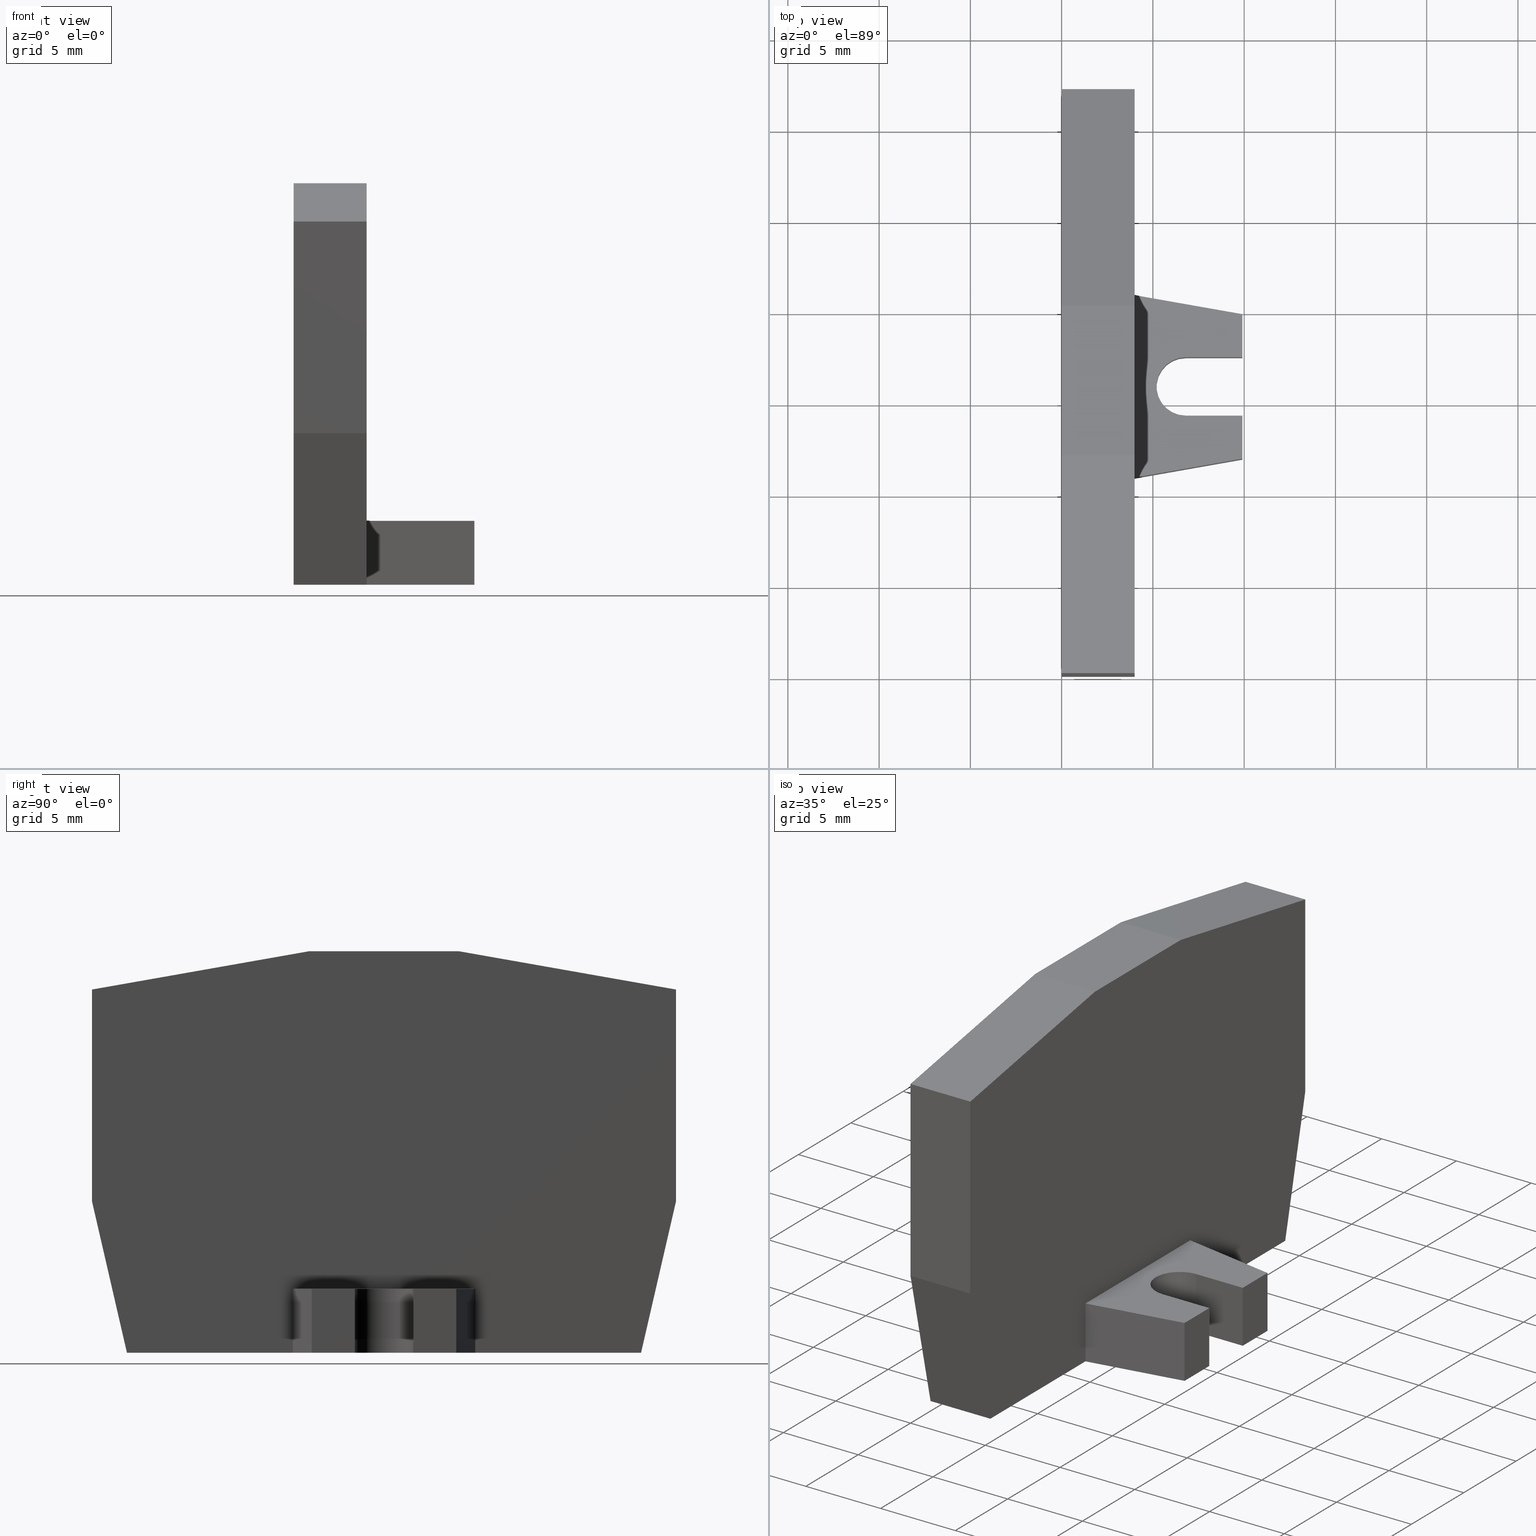
[diagram: canonical four-view strip — front | top / right | iso, engineering-drawing reading convention]
A machine part, canonical four-view strip (front | top / right | iso — engineering-drawing reading convention). The complete STEP part file that produces these views, byte-faithful:
ISO-10303-21;
HEADER;
FILE_DESCRIPTION(('Creo Elements/Direct Modeling STEP Export'),'2;1');
FILE_NAME(
'D:/temp/JobSpoolerServerData/JobServer Files/93475bc8-3e55-4a68-aea6-f9
3c253741bb/work/output/model.stp','2018-03-26T17:15:34',(''),(''),
'Creo Elements/Direct Modeling STEP processor for AP214 (Solid Model)',
'Creo Elements/Direct Modeling 18.1I  14-Aug-2016 (C) Parametric Technol
ogy GmbH','');
FILE_SCHEMA(('AUTOMOTIVE_DESIGN { 1 0 10303 214 1 1 1 1 }'));
ENDSEC;
DATA;
#10=CARTESIAN_POINT('',(-4.06644704301013,111.01779049095,
3.8277564886281));
#20=DIRECTION('',(-1.,2.54170139600954E-15,0.));
#30=DIRECTION('',(2.54170139600954E-15,1.,0.));
#40=AXIS2_PLACEMENT_3D('',#10,#20,#30);
#50=PLANE('',#40);
#60=CARTESIAN_POINT('',(-4.0664470430101,122.619499420518,
3.8277564886281));
#70=DIRECTION('',(0.,0.,-1.));
#80=VECTOR('',#70,1.);
#90=LINE('',#60,#80);
#100=CARTESIAN_POINT('',(-4.06644704301012,122.619499420518,
7.8277564886281));
#110=VERTEX_POINT('',#100);
#120=CARTESIAN_POINT('',(-4.06644704301012,122.619499420518,
3.8277564886281));
#130=VERTEX_POINT('',#120);
#140=EDGE_CURVE('',#110,#130,#90,.T.);
#150=ORIENTED_EDGE('',*,*,#140,.T.);
#160=CARTESIAN_POINT('',(-4.0664470430101,122.790993259522,
7.8277564886281));
#170=DIRECTION('',(-2.54170139600954E-15,-1.,0.));
#180=VECTOR('',#170,1.);
#190=LINE('',#160,#180);
#200=CARTESIAN_POINT('',(-4.06644704301013,111.01779049095,
7.8277564886281));
#210=VERTEX_POINT('',#200);
#220=EDGE_CURVE('',#110,#210,#190,.T.);
#230=ORIENTED_EDGE('',*,*,#220,.F.);
#240=CARTESIAN_POINT('',(-4.06644704301013,111.01779049095,
3.8277564886281));
#250=DIRECTION('',(0.,0.,1.));
#260=VECTOR('',#250,1.);
#270=LINE('',#240,#260);
#280=CARTESIAN_POINT('',(-4.06644704301013,111.01779049095,
3.8277564886281));
#290=VERTEX_POINT('',#280);
#300=EDGE_CURVE('',#290,#210,#270,.T.);
#310=ORIENTED_EDGE('',*,*,#300,.T.);
#320=CARTESIAN_POINT('',(-4.0664470430101,122.790993259522,
3.8277564886281));
#330=DIRECTION('',(2.54170139600954E-15,1.,6.31088724176809E-30));
#340=VECTOR('',#330,1.);
#350=LINE('',#320,#340);
#360=EDGE_CURVE('',#290,#130,#350,.T.);
#370=ORIENTED_EDGE('',*,*,#360,.F.);
#380=EDGE_LOOP('',(#370,#310,#230,#150));
#390=FACE_OUTER_BOUND('',#380,.T.);
#400=ADVANCED_FACE('',(#390),#50,.T.);
#410=COLOUR_RGB('',0.560784339904785,0.588235318660736,0.600000023841858
);
#420=FILL_AREA_STYLE_COLOUR('',#410);
#430=FILL_AREA_STYLE('',(#420));
#440=SURFACE_STYLE_FILL_AREA(#430);
#450=SURFACE_SIDE_STYLE('',(#440));
#460=SURFACE_STYLE_USAGE(.BOTH.,#450);
#470=PRESENTATION_STYLE_ASSIGNMENT((#460));
#480=CARTESIAN_POINT('',(-2.32917520478512,103.492839436606,
3.8277564886281));
#490=DIRECTION('',(-0.974370064785228,-0.224951054343896,-0.));
#500=DIRECTION('',(-0.224951054343896,0.974370064785228,0.));
#510=AXIS2_PLACEMENT_3D('',#480,#490,#500);
#520=PLANE('',#510);
#530=CARTESIAN_POINT('',(-6.78450506994527,122.790993259522,
3.8277564886281));
#540=DIRECTION('',(-0.224951054343896,0.974370064785228,0.));
#550=VECTOR('',#540,1.);
#560=LINE('',#530,#550);
#570=CARTESIAN_POINT('',(-2.15024105666769,102.71779049095,
3.8277564886281));
#580=VERTEX_POINT('',#570);
#590=EDGE_CURVE('',#580,#290,#560,.T.);
#600=ORIENTED_EDGE('',*,*,#590,.F.);
#610=ORIENTED_EDGE('',*,*,#300,.F.);
#620=CARTESIAN_POINT('',(-6.78450506994527,122.790993259522,
7.8277564886281));
#630=DIRECTION('',(0.224951054343896,-0.974370064785228,0.));
#640=VECTOR('',#630,1.);
#650=LINE('',#620,#640);
#660=CARTESIAN_POINT('',(-2.1502410566677,102.71779049095,
7.8277564886281));
#670=VERTEX_POINT('',#660);
#680=EDGE_CURVE('',#210,#670,#650,.T.);
#690=ORIENTED_EDGE('',*,*,#680,.F.);
#700=CARTESIAN_POINT('',(-2.1502410566677,102.71779049095,
3.8277564886281));
#710=DIRECTION('',(0.,0.,-1.));
#720=VECTOR('',#710,1.);
#730=LINE('',#700,#720);
#740=EDGE_CURVE('',#670,#580,#730,.T.);
#750=ORIENTED_EDGE('',*,*,#740,.F.);
#760=EDGE_LOOP('',(#750,#690,#610,#600));
#770=FACE_OUTER_BOUND('',#760,.T.);
#780=ADVANCED_FACE('',(#770),#520,.T.);
#790=COLOUR_RGB('',0.560784339904785,0.588235318660736,0.600000023841858
);
#800=FILL_AREA_STYLE_COLOUR('',#790);
#810=FILL_AREA_STYLE('',(#800));
#820=SURFACE_STYLE_FILL_AREA(#810);
#830=SURFACE_SIDE_STYLE('',(#820));
#840=SURFACE_STYLE_USAGE(.BOTH.,#830);
#850=PRESENTATION_STYLE_ASSIGNMENT((#840));
#860=CARTESIAN_POINT('',(13.5335529569918,102.71779049095,
12.7277564886281));
#870=DIRECTION('',(-1.,0.,0.));
#880=DIRECTION('',(0.,0.,1.));
#890=AXIS2_PLACEMENT_3D('',#860,#870,#880);
#900=PLANE('',#890);
#910=CARTESIAN_POINT('',(13.5335529569918,102.71779049095,
3.8277564886281));
#920=DIRECTION('',(0.,0.,-1.));
#930=VECTOR('',#920,1.);
#940=LINE('',#910,#930);
#950=CARTESIAN_POINT('',(13.5335529569918,102.71779049095,
13.7277564886282));
#960=VERTEX_POINT('',#950);
#970=CARTESIAN_POINT('',(13.5335529569918,102.71779049095,
10.6277564886281));
#980=VERTEX_POINT('',#970);
#990=EDGE_CURVE('',#960,#980,#940,.T.);
#1000=ORIENTED_EDGE('',*,*,#990,.F.);
#1010=CARTESIAN_POINT('',(13.5335529569918,102.71779049095,
10.6277564886281));
#1020=DIRECTION('',(0.,1.,0.));
#1030=VECTOR('',#1020,1.);
#1040=LINE('',#1010,#1030);
#1050=CARTESIAN_POINT('',(13.5335529569918,106.21779049095,
10.6277564886281));
#1060=VERTEX_POINT('',#1050);
#1070=EDGE_CURVE('',#980,#1060,#1040,.T.);
#1080=ORIENTED_EDGE('',*,*,#1070,.F.);
#1090=CARTESIAN_POINT('',(13.5335529569918,106.21779049095,
3.8277564886281));
#1100=DIRECTION('',(0.,0.,-1.));
#1110=VECTOR('',#1100,1.);
#1120=LINE('',#1090,#1110);
#1130=CARTESIAN_POINT('',(13.5335529569918,106.21779049095,
13.7277564886282));
#1140=VERTEX_POINT('',#1130);
#1150=EDGE_CURVE('',#1140,#1060,#1120,.T.);
#1160=ORIENTED_EDGE('',*,*,#1150,.T.);
#1170=CARTESIAN_POINT('',(13.5335529569918,122.790993259522,
13.7277564886282));
#1180=DIRECTION('',(0.,-1.,0.));
#1190=VECTOR('',#1180,1.);
#1200=LINE('',#1170,#1190);
#1210=EDGE_CURVE('',#1140,#960,#1200,.T.);
#1220=ORIENTED_EDGE('',*,*,#1210,.F.);
#1230=EDGE_LOOP('',(#1220,#1160,#1080,#1000));
#1240=FACE_OUTER_BOUND('',#1230,.T.);
#1250=ADVANCED_FACE('',(#1240),#900,.T.);
#1260=COLOUR_RGB('',0.560784339904785,0.588235318660736,
0.600000023841858);
#1270=FILL_AREA_STYLE_COLOUR('',#1260);
#1280=FILL_AREA_STYLE('',(#1270));
#1290=SURFACE_STYLE_FILL_AREA(#1280);
#1300=SURFACE_SIDE_STYLE('',(#1290));
#1310=SURFACE_STYLE_USAGE(.BOTH.,#1300);
#1320=PRESENTATION_STYLE_ASSIGNMENT((#1310));
#1330=CARTESIAN_POINT('',(27.9335529569937,122.19994960493,
3.8277564886281));
#1340=DIRECTION('',(1.,0.,0.));
#1350=DIRECTION('',(0.,-1.,0.));
#1360=AXIS2_PLACEMENT_3D('',#1330,#1340,#1350);
#1370=PLANE('',#1360);
#1380=CARTESIAN_POINT('',(27.9335529569937,122.790993259522,
3.8277564886281));
#1390=DIRECTION('',(0.,-1.,-6.3108872417681E-30));
#1400=VECTOR('',#1390,1.);
#1410=LINE('',#1380,#1400);
#1420=CARTESIAN_POINT('',(27.9335529569937,122.619499420518,
3.8277564886281));
#1430=VERTEX_POINT('',#1420);
#1440=CARTESIAN_POINT('',(27.9335529569937,111.01779049095,
3.8277564886281));
#1450=VERTEX_POINT('',#1440);
#1460=EDGE_CURVE('',#1430,#1450,#1410,.T.);
#1470=ORIENTED_EDGE('',*,*,#1460,.F.);
#1480=CARTESIAN_POINT('',(27.9335529569937,111.01779049095,
3.8277564886281));
#1490=DIRECTION('',(0.,0.,1.));
#1500=VECTOR('',#1490,1.);
#1510=LINE('',#1480,#1500);
#1520=CARTESIAN_POINT('',(27.9335529569937,111.01779049095,
7.8277564886281));
#1530=VERTEX_POINT('',#1520);
#1540=EDGE_CURVE('',#1450,#1530,#1510,.T.);
#1550=ORIENTED_EDGE('',*,*,#1540,.F.);
#1560=CARTESIAN_POINT('',(27.9335529569937,122.790993259522,
7.8277564886281));
#1570=DIRECTION('',(0.,1.,0.));
#1580=VECTOR('',#1570,1.);
#1590=LINE('',#1560,#1580);
#1600=CARTESIAN_POINT('',(27.9335529569937,122.619499420518,
7.8277564886281));
#1610=VERTEX_POINT('',#1600);
#1620=EDGE_CURVE('',#1530,#1610,#1590,.T.);
#1630=ORIENTED_EDGE('',*,*,#1620,.F.);
#1640=CARTESIAN_POINT('',(27.9335529569937,122.619499420518,
3.8277564886281));
#1650=DIRECTION('',(0.,0.,-1.));
#1660=VECTOR('',#1650,1.);
#1670=LINE('',#1640,#1660);
#1680=EDGE_CURVE('',#1610,#1430,#1670,.T.);
#1690=ORIENTED_EDGE('',*,*,#1680,.F.);
#1700=EDGE_LOOP('',(#1690,#1630,#1550,#1470));
#1710=FACE_OUTER_BOUND('',#1700,.T.);
#1720=ADVANCED_FACE('',(#1710),#1370,.T.);
#1730=COLOUR_RGB('',0.560784339904785,0.588235318660736,
0.600000023841858);
#1740=FILL_AREA_STYLE_COLOUR('',#1730);
#1750=FILL_AREA_STYLE('',(#1740));
#1760=SURFACE_STYLE_FILL_AREA(#1750);
#1770=SURFACE_SIDE_STYLE('',(#1760));
#1780=SURFACE_STYLE_USAGE(.BOTH.,#1770);
#1790=PRESENTATION_STYLE_ASSIGNMENT((#1780));
#1800=CARTESIAN_POINT('',(16.9335529569918,102.71779049095,
7.82775648862809));
#1810=DIRECTION('',(0.984807753012208,-0.,0.173648177666932));
#1820=DIRECTION('',(0.173648177666932,0.,-0.984807753012208));
#1830=AXIS2_PLACEMENT_3D('',#1800,#1810,#1820);
#1840=PLANE('',#1830);
#1850=CARTESIAN_POINT('',(15.8932237708119,122.790993259522,
13.7277564886281));
#1860=DIRECTION('',(0.,-1.,0.));
#1870=VECTOR('',#1860,1.);
#1880=LINE('',#1850,#1870);
#1890=CARTESIAN_POINT('',(15.8932237708119,106.21779049095,
13.7277564886281));
#1900=VERTEX_POINT('',#1890);
#1910=CARTESIAN_POINT('',(15.8932237708119,102.71779049095,
13.7277564886281));
#1920=VERTEX_POINT('',#1910);
#1930=EDGE_CURVE('',#1900,#1920,#1880,.T.);
#1940=ORIENTED_EDGE('',*,*,#1930,.T.);
#1950=CARTESIAN_POINT('',(17.6388608798257,106.21779049095,
3.8277564886281));
#1960=DIRECTION('',(0.173648177666932,0.,-0.984807753012208));
#1970=VECTOR('',#1960,1.);
#1980=LINE('',#1950,#1970);
#1990=CARTESIAN_POINT('',(16.9335529569918,106.21779049095,
7.8277564886281));
#2000=VERTEX_POINT('',#1990);
#2010=EDGE_CURVE('',#1900,#2000,#1980,.T.);
#2020=ORIENTED_EDGE('',*,*,#2010,.F.);
#2030=CARTESIAN_POINT('',(16.9335529569918,103.81779049095,
7.82775648862809));
#2040=DIRECTION('',(0.,1.,0.));
#2050=VECTOR('',#2040,1.);
#2060=LINE('',#2030,#2050);
#2070=CARTESIAN_POINT('',(16.9335529569918,102.71779049095,
7.8277564886281));
#2080=VERTEX_POINT('',#2070);
#2090=EDGE_CURVE('',#2080,#2000,#2060,.T.);
#2100=ORIENTED_EDGE('',*,*,#2090,.T.);
#2110=CARTESIAN_POINT('',(17.6388608798257,102.71779049095,
3.8277564886281));
#2120=DIRECTION('',(0.173648177666932,0.,-0.984807753012208));
#2130=VECTOR('',#2120,1.);
#2140=LINE('',#2110,#2130);
#2150=EDGE_CURVE('',#1920,#2080,#2140,.T.);
#2160=ORIENTED_EDGE('',*,*,#2150,.T.);
#2170=EDGE_LOOP('',(#2160,#2100,#2020,#1940));
#2180=FACE_OUTER_BOUND('',#2170,.T.);
#2190=ADVANCED_FACE('',(#2180),#1840,.T.);
#2200=COLOUR_RGB('',0.560784339904785,0.588235318660736,
0.600000023841858);
#2210=FILL_AREA_STYLE_COLOUR('',#2200);
#2220=FILL_AREA_STYLE('',(#2210));
#2230=SURFACE_STYLE_FILL_AREA(#2220);
#2240=SURFACE_SIDE_STYLE('',(#2230));
#2250=SURFACE_STYLE_USAGE(.BOTH.,#2240);
#2260=PRESENTATION_STYLE_ASSIGNMENT((#2250));
#2270=CARTESIAN_POINT('',(7.82817402133679,102.71779049095,
12.901404666295));
#2280=DIRECTION('',(-0.984807753012208,0.,0.173648177666931));
#2290=DIRECTION('',(0.173648177666931,0.,0.984807753012208));
#2300=AXIS2_PLACEMENT_3D('',#2270,#2280,#2290);
#2310=PLANE('',#2300);
#2320=CARTESIAN_POINT('',(6.22824503415792,102.71779049095,
3.8277564886281));
#2330=DIRECTION('',(0.173648177666931,0.,0.984807753012208));
#2340=VECTOR('',#2330,1.);
#2350=LINE('',#2320,#2340);
#2360=CARTESIAN_POINT('',(6.93355295699178,102.71779049095,
7.8277564886281));
#2370=VERTEX_POINT('',#2360);
#2380=CARTESIAN_POINT('',(7.97388214317185,102.71779049095,
13.7277564886288));
#2390=VERTEX_POINT('',#2380);
#2400=EDGE_CURVE('',#2370,#2390,#2350,.T.);
#2410=ORIENTED_EDGE('',*,*,#2400,.T.);
#2420=CARTESIAN_POINT('',(6.93355295699178,103.81779049095,
7.82775648862809));
#2430=DIRECTION('',(0.,1.,0.));
#2440=VECTOR('',#2430,1.);
#2450=LINE('',#2420,#2440);
#2460=CARTESIAN_POINT('',(6.93355295699178,106.21779049095,
7.8277564886281));
#2470=VERTEX_POINT('',#2460);
#2480=EDGE_CURVE('',#2370,#2470,#2450,.T.);
#2490=ORIENTED_EDGE('',*,*,#2480,.F.);
#2500=CARTESIAN_POINT('',(6.22824503415792,106.21779049095,
3.8277564886281));
#2510=DIRECTION('',(0.173648177666931,0.,0.984807753012208));
#2520=VECTOR('',#2510,1.);
#2530=LINE('',#2500,#2520);
#2540=CARTESIAN_POINT('',(7.97388214317185,106.21779049095,
13.7277564886288));
#2550=VERTEX_POINT('',#2540);
#2560=EDGE_CURVE('',#2470,#2550,#2530,.T.);
#2570=ORIENTED_EDGE('',*,*,#2560,.F.);
#2580=CARTESIAN_POINT('',(7.97388214317185,122.790993259522,
13.7277564886288));
#2590=DIRECTION('',(0.,-1.,0.));
#2600=VECTOR('',#2590,1.);
#2610=LINE('',#2580,#2600);
#2620=EDGE_CURVE('',#2550,#2390,#2610,.T.);
#2630=ORIENTED_EDGE('',*,*,#2620,.F.);
#2640=EDGE_LOOP('',(#2630,#2570,#2490,#2410));
#2650=FACE_OUTER_BOUND('',#2640,.T.);
#2660=ADVANCED_FACE('',(#2650),#2310,.T.);
#2670=COLOUR_RGB('',0.560784339904785,0.588235318660736,
0.600000023841858);
#2680=FILL_AREA_STYLE_COLOUR('',#2670);
#2690=FILL_AREA_STYLE('',(#2680));
#2700=SURFACE_STYLE_FILL_AREA(#2690);
#2710=SURFACE_SIDE_STYLE('',(#2700));
#2720=SURFACE_STYLE_USAGE(.BOTH.,#2710);
#2730=PRESENTATION_STYLE_ASSIGNMENT((#2720));
#2740=CARTESIAN_POINT('',(20.1344304914371,102.71779049095,
5.43891971521969));
#2750=DIRECTION('',(0.,-1.,0.));
#2760=DIRECTION('',(1.,0.,0.));
#2770=AXIS2_PLACEMENT_3D('',#2740,#2750,#2760);
#2780=PLANE('',#2770);
#2790=ORIENTED_EDGE('',*,*,#740,.T.);
#2800=CARTESIAN_POINT('',(20.073056853767,102.71779049095,
7.8277564886281));
#2810=DIRECTION('',(1.,0.,0.));
#2820=VECTOR('',#2810,1.);
#2830=LINE('',#2800,#2820);
#2840=EDGE_CURVE('',#670,#2370,#2830,.T.);
#2850=ORIENTED_EDGE('',*,*,#2840,.F.);
#2860=ORIENTED_EDGE('',*,*,#2400,.F.);
#2870=CARTESIAN_POINT('',(20.073056853767,102.71779049095,
13.7277564886184));
#2880=DIRECTION('',(1.,0.,-8.63517120161028E-13));
#2890=VECTOR('',#2880,1.);
#2900=LINE('',#2870,#2890);
#2910=CARTESIAN_POINT('',(10.3335529569918,102.71779049095,
13.7277564886268));
#2920=VERTEX_POINT('',#2910);
#2930=EDGE_CURVE('',#2390,#2920,#2900,.T.);
#2940=ORIENTED_EDGE('',*,*,#2930,.F.);
#2950=CARTESIAN_POINT('',(10.3335529569918,102.71779049095,
3.8277564886281));
#2960=DIRECTION('',(0.,0.,-1.));
#2970=VECTOR('',#2960,1.);
#2980=LINE('',#2950,#2970);
#2990=CARTESIAN_POINT('',(10.3335529569918,102.71779049095,
10.6277564886281));
#3000=VERTEX_POINT('',#2990);
#3010=EDGE_CURVE('',#2920,#3000,#2980,.T.);
#3020=ORIENTED_EDGE('',*,*,#3010,.F.);
#3030=CARTESIAN_POINT('',(11.9335529569918,102.71779049095,
10.6277564886281));
#3040=DIRECTION('',(0.,-1.,0.));
#3050=DIRECTION('',(-1.,0.,0.));
#3060=AXIS2_PLACEMENT_3D('',#3030,#3040,#3050);
#3070=CIRCLE('',#3060,1.59999999999999);
#3080=EDGE_CURVE('',#3000,#980,#3070,.T.);
#3090=ORIENTED_EDGE('',*,*,#3080,.F.);
#3100=ORIENTED_EDGE('',*,*,#990,.T.);
#3110=CARTESIAN_POINT('',(20.073056853767,102.71779049095,
13.7277564886279));
#3120=DIRECTION('',(1.,0.,-3.5527136788005E-14));
#3130=VECTOR('',#3120,1.);
#3140=LINE('',#3110,#3130);
#3150=EDGE_CURVE('',#960,#1920,#3140,.T.);
#3160=ORIENTED_EDGE('',*,*,#3150,.F.);
#3170=ORIENTED_EDGE('',*,*,#2150,.F.);
#3180=CARTESIAN_POINT('',(20.073056853767,102.71779049095,
7.8277564886281));
#3190=DIRECTION('',(1.,0.,0.));
#3200=VECTOR('',#3190,1.);
#3210=LINE('',#3180,#3200);
#3220=CARTESIAN_POINT('',(26.0173469706513,102.71779049095,
7.8277564886281));
#3230=VERTEX_POINT('',#3220);
#3240=EDGE_CURVE('',#2080,#3230,#3210,.T.);
#3250=ORIENTED_EDGE('',*,*,#3240,.F.);
#3260=CARTESIAN_POINT('',(26.0173469706513,102.71779049095,
3.8277564886281));
#3270=DIRECTION('',(0.,0.,-1.));
#3280=VECTOR('',#3270,1.);
#3290=LINE('',#3260,#3280);
#3300=CARTESIAN_POINT('',(26.0173469706513,102.71779049095,
3.8277564886281));
#3310=VERTEX_POINT('',#3300);
#3320=EDGE_CURVE('',#3230,#3310,#3290,.T.);
#3330=ORIENTED_EDGE('',*,*,#3320,.F.);
#3340=CARTESIAN_POINT('',(20.073056853767,102.71779049095,
3.8277564886281));
#3350=DIRECTION('',(-1.,0.,0.));
#3360=VECTOR('',#3350,1.);
#3370=LINE('',#3340,#3360);
#3380=EDGE_CURVE('',#3310,#580,#3370,.T.);
#3390=ORIENTED_EDGE('',*,*,#3380,.F.);
#3400=EDGE_LOOP('',(#3390,#3330,#3250,#3170,#3160,#3100,#3090,#3020,
#2940,#2860,#2850,#2790));
#3410=FACE_OUTER_BOUND('',#3400,.T.);
#3420=ADVANCED_FACE('',(#3410),#2780,.T.);
#3430=COLOUR_RGB('',0.560784339904785,0.588235318660736,
0.600000023841858);
#3440=FILL_AREA_STYLE_COLOUR('',#3430);
#3450=FILL_AREA_STYLE('',(#3440));
#3460=SURFACE_STYLE_FILL_AREA(#3450);
#3470=SURFACE_SIDE_STYLE('',(#3460));
#3480=SURFACE_STYLE_USAGE(.BOTH.,#3470);
#3490=PRESENTATION_STYLE_ASSIGNMENT((#3480));
#3500=CARTESIAN_POINT('',(27.9335529569937,111.01779049095,
3.8277564886281));
#3510=DIRECTION('',(0.97437006478523,-0.224951054343888,0.));
#3520=DIRECTION('',(-0.224951054343888,-0.97437006478523,0.));
#3530=AXIS2_PLACEMENT_3D('',#3500,#3510,#3520);
#3540=PLANE('',#3530);
#3550=ORIENTED_EDGE('',*,*,#3320,.T.);
#3560=CARTESIAN_POINT('',(30.6516109839287,122.790993259522,
7.8277564886281));
#3570=DIRECTION('',(0.224951054343888,0.97437006478523,0.));
#3580=VECTOR('',#3570,1.);
#3590=LINE('',#3560,#3580);
#3600=EDGE_CURVE('',#3230,#1530,#3590,.T.);
#3610=ORIENTED_EDGE('',*,*,#3600,.F.);
#3620=ORIENTED_EDGE('',*,*,#1540,.T.);
#3630=CARTESIAN_POINT('',(30.6516109839287,122.790993259522,
3.8277564886281));
#3640=DIRECTION('',(-0.224951054343888,-0.97437006478523,0.));
#3650=VECTOR('',#3640,1.);
#3660=LINE('',#3630,#3650);
#3670=EDGE_CURVE('',#1450,#3310,#3660,.T.);
#3680=ORIENTED_EDGE('',*,*,#3670,.F.);
#3690=EDGE_LOOP('',(#3680,#3620,#3610,#3550));
#3700=FACE_OUTER_BOUND('',#3690,.T.);
#3710=ADVANCED_FACE('',(#3700),#3540,.T.);
#3720=COLOUR_RGB('',0.560784339904785,0.588235318660736,
0.600000023841858);
#3730=FILL_AREA_STYLE_COLOUR('',#3720);
#3740=FILL_AREA_STYLE('',(#3730));
#3750=SURFACE_STYLE_FILL_AREA(#3740);
#3760=SURFACE_SIDE_STYLE('',(#3750));
#3770=SURFACE_STYLE_USAGE(.BOTH.,#3760);
#3780=PRESENTATION_STYLE_ASSIGNMENT((#3770));
#3790=CARTESIAN_POINT('',(11.9335529569918,102.71779049095,
10.6277564886281));
#3800=DIRECTION('',(0.,-1.,0.));
#3810=DIRECTION('',(-1.,0.,0.));
#3820=AXIS2_PLACEMENT_3D('',#3790,#3800,#3810);
#3830=CYLINDRICAL_SURFACE('',#3820,1.59999999999999);
#3840=CARTESIAN_POINT('',(10.3335529569918,102.71779049095,
10.6277564886281));
#3850=DIRECTION('',(0.,1.,0.));
#3860=VECTOR('',#3850,1.);
#3870=LINE('',#3840,#3860);
#3880=CARTESIAN_POINT('',(10.3335529569918,106.21779049095,
10.6277564886281));
#3890=VERTEX_POINT('',#3880);
#3900=EDGE_CURVE('',#3000,#3890,#3870,.T.);
#3910=ORIENTED_EDGE('',*,*,#3900,.F.);
#3920=CARTESIAN_POINT('',(11.9335529569918,106.21779049095,
10.6277564886281));
#3930=DIRECTION('',(0.,-1.,0.));
#3940=DIRECTION('',(-1.,0.,0.));
#3950=AXIS2_PLACEMENT_3D('',#3920,#3930,#3940);
#3960=CIRCLE('',#3950,1.59999999999999);
#3970=EDGE_CURVE('',#3890,#1060,#3960,.T.);
#3980=ORIENTED_EDGE('',*,*,#3970,.F.);
#3990=ORIENTED_EDGE('',*,*,#1070,.T.);
#4000=ORIENTED_EDGE('',*,*,#3080,.T.);
#4010=EDGE_LOOP('',(#4000,#3990,#3980,#3910));
#4020=FACE_OUTER_BOUND('',#4010,.T.);
#4030=ADVANCED_FACE('',(#4020),#3830,.F.);
#4040=COLOUR_RGB('',0.560784339904785,0.588235318660736,
0.600000023841858);
#4050=FILL_AREA_STYLE_COLOUR('',#4040);
#4060=FILL_AREA_STYLE('',(#4050));
#4070=SURFACE_STYLE_FILL_AREA(#4060);
#4080=SURFACE_SIDE_STYLE('',(#4070));
#4090=SURFACE_STYLE_USAGE(.BOTH.,#4080);
#4100=PRESENTATION_STYLE_ASSIGNMENT((#4090));
#4110=CARTESIAN_POINT('',(10.3335529569918,102.71779049095,
10.6277564886281));
#4120=DIRECTION('',(1.,-0.,0.));
#4130=DIRECTION('',(0.,0.,-1.));
#4140=AXIS2_PLACEMENT_3D('',#4110,#4120,#4130);
#4150=PLANE('',#4140);
#4160=CARTESIAN_POINT('',(10.3335529569918,122.790993259522,
13.7277564886268));
#4170=DIRECTION('',(0.,-1.,0.));
#4180=VECTOR('',#4170,1.);
#4190=LINE('',#4160,#4180);
#4200=CARTESIAN_POINT('',(10.3335529569918,106.21779049095,
13.7277564886268));
#4210=VERTEX_POINT('',#4200);
#4220=EDGE_CURVE('',#4210,#2920,#4190,.T.);
#4230=ORIENTED_EDGE('',*,*,#4220,.T.);
#4240=CARTESIAN_POINT('',(10.3335529569918,106.21779049095,
3.8277564886281));
#4250=DIRECTION('',(0.,0.,-1.));
#4260=VECTOR('',#4250,1.);
#4270=LINE('',#4240,#4260);
#4280=EDGE_CURVE('',#4210,#3890,#4270,.T.);
#4290=ORIENTED_EDGE('',*,*,#4280,.F.);
#4300=ORIENTED_EDGE('',*,*,#3900,.T.);
#4310=ORIENTED_EDGE('',*,*,#3010,.T.);
#4320=EDGE_LOOP('',(#4310,#4300,#4290,#4230));
#4330=FACE_OUTER_BOUND('',#4320,.T.);
#4340=ADVANCED_FACE('',(#4330),#4150,.T.);
#4350=COLOUR_RGB('',0.560784339904785,0.588235318660736,
0.600000023841858);
#4360=FILL_AREA_STYLE_COLOUR('',#4350);
#4370=FILL_AREA_STYLE('',(#4360));
#4380=SURFACE_STYLE_FILL_AREA(#4370);
#4390=SURFACE_SIDE_STYLE('',(#4380));
#4400=SURFACE_STYLE_USAGE(.BOTH.,#4390);
#4410=PRESENTATION_STYLE_ASSIGNMENT((#4400));
#4420=CARTESIAN_POINT('',(8.83355295699178,103.81779049095,
13.7277564886281));
#4430=DIRECTION('',(8.63517120161028E-13,-0.,1.));
#4440=DIRECTION('',(1.,0.,-8.63517120161028E-13));
#4450=AXIS2_PLACEMENT_3D('',#4420,#4430,#4440);
#4460=PLANE('',#4450);
#4470=ORIENTED_EDGE('',*,*,#2930,.T.);
#4480=ORIENTED_EDGE('',*,*,#2620,.T.);
#4490=CARTESIAN_POINT('',(20.073056853767,106.21779049095,
13.7277564886184));
#4500=DIRECTION('',(-1.,0.,8.63517120161028E-13));
#4510=VECTOR('',#4500,1.);
#4520=LINE('',#4490,#4510);
#4530=EDGE_CURVE('',#4210,#2550,#4520,.T.);
#4540=ORIENTED_EDGE('',*,*,#4530,.T.);
#4550=ORIENTED_EDGE('',*,*,#4220,.F.);
#4560=EDGE_LOOP('',(#4550,#4540,#4480,#4470));
#4570=FACE_OUTER_BOUND('',#4560,.T.);
#4580=ADVANCED_FACE('',(#4570),#4460,.T.);
#4590=COLOUR_RGB('',0.560784339904785,0.588235318660736,
0.600000023841858);
#4600=FILL_AREA_STYLE_COLOUR('',#4590);
#4610=FILL_AREA_STYLE('',(#4600));
#4620=SURFACE_STYLE_FILL_AREA(#4610);
#4630=SURFACE_SIDE_STYLE('',(#4620));
#4640=SURFACE_STYLE_USAGE(.BOTH.,#4630);
#4650=PRESENTATION_STYLE_ASSIGNMENT((#4640));
#4660=CARTESIAN_POINT('',(20.1344304914371,106.21779049095,
5.43891971521969));
#4670=DIRECTION('',(0.,-1.,0.));
#4680=DIRECTION('',(1.,0.,0.));
#4690=AXIS2_PLACEMENT_3D('',#4660,#4670,#4680);
#4700=PLANE('',#4690);
#4710=ORIENTED_EDGE('',*,*,#4530,.F.);
#4720=ORIENTED_EDGE('',*,*,#2560,.T.);
#4730=CARTESIAN_POINT('',(20.073056853767,106.21779049095,
7.8277564886281));
#4740=DIRECTION('',(-1.,0.,0.));
#4750=VECTOR('',#4740,1.);
#4760=LINE('',#4730,#4750);
#4770=EDGE_CURVE('',#2000,#2470,#4760,.T.);
#4780=ORIENTED_EDGE('',*,*,#4770,.T.);
#4790=ORIENTED_EDGE('',*,*,#2010,.T.);
#4800=CARTESIAN_POINT('',(20.073056853767,106.21779049095,
13.7277564886279));
#4810=DIRECTION('',(1.,0.,-3.5527136788005E-14));
#4820=VECTOR('',#4810,1.);
#4830=LINE('',#4800,#4820);
#4840=EDGE_CURVE('',#1140,#1900,#4830,.T.);
#4850=ORIENTED_EDGE('',*,*,#4840,.T.);
#4860=ORIENTED_EDGE('',*,*,#1150,.F.);
#4870=ORIENTED_EDGE('',*,*,#3970,.T.);
#4880=ORIENTED_EDGE('',*,*,#4280,.T.);
#4890=EDGE_LOOP('',(#4880,#4870,#4860,#4850,#4790,#4780,#4720,#4710));
#4900=FACE_OUTER_BOUND('',#4890,.T.);
#4910=ADVANCED_FACE('',(#4900),#4700,.F.);
#4920=COLOUR_RGB('',0.560784339904785,0.588235318660736,
0.600000023841858);
#4930=FILL_AREA_STYLE_COLOUR('',#4920);
#4940=FILL_AREA_STYLE('',(#4930));
#4950=SURFACE_STYLE_FILL_AREA(#4940);
#4960=SURFACE_SIDE_STYLE('',(#4950));
#4970=SURFACE_STYLE_USAGE(.BOTH.,#4960);
#4980=PRESENTATION_STYLE_ASSIGNMENT((#4970));
#4990=CARTESIAN_POINT('',(15.0541241396346,103.81779049095,
13.7277564886281));
#5000=DIRECTION('',(3.5527136788005E-14,-0.,1.));
#5010=DIRECTION('',(1.,0.,-3.5527136788005E-14));
#5020=AXIS2_PLACEMENT_3D('',#4990,#5000,#5010);
#5030=PLANE('',#5020);
#5040=ORIENTED_EDGE('',*,*,#3150,.T.);
#5050=ORIENTED_EDGE('',*,*,#1210,.T.);
#5060=ORIENTED_EDGE('',*,*,#4840,.F.);
#5070=ORIENTED_EDGE('',*,*,#1930,.F.);
#5080=EDGE_LOOP('',(#5070,#5060,#5050,#5040));
#5090=FACE_OUTER_BOUND('',#5080,.T.);
#5100=ADVANCED_FACE('',(#5090),#5030,.T.);
#5110=COLOUR_RGB('',0.560784339904785,0.588235318660736,
0.600000023841858);
#5120=FILL_AREA_STYLE_COLOUR('',#5110);
#5130=FILL_AREA_STYLE('',(#5120));
#5140=SURFACE_STYLE_FILL_AREA(#5130);
#5150=SURFACE_SIDE_STYLE('',(#5140));
#5160=SURFACE_STYLE_USAGE(.BOTH.,#5150);
#5170=PRESENTATION_STYLE_ASSIGNMENT((#5160));
#5180=CARTESIAN_POINT('',(2.848841,106.75753,3.8277564886281));
#5190=DIRECTION('',(0.,6.3108872417681E-30,-1.));
#5200=DIRECTION('',(0.,-1.,-6.3108872417681E-30));
#5210=AXIS2_PLACEMENT_3D('',#5180,#5190,#5200);
#5220=PLANE('',#5210);
#5230=ORIENTED_EDGE('',*,*,#3380,.T.);
#5240=ORIENTED_EDGE('',*,*,#3670,.T.);
#5250=ORIENTED_EDGE('',*,*,#1460,.T.);
#5260=CARTESIAN_POINT('',(20.073056853767,124.005516965271,
3.8277564886281));
#5270=DIRECTION('',(0.984807753012205,-0.173648177666947,0.));
#5280=VECTOR('',#5270,1.);
#5290=LINE('',#5260,#5280);
#5300=CARTESIAN_POINT('',(16.0335529569916,124.71779049095,
3.8277564886281));
#5310=VERTEX_POINT('',#5300);
#5320=EDGE_CURVE('',#5310,#1430,#5290,.T.);
#5330=ORIENTED_EDGE('',*,*,#5320,.T.);
#5340=CARTESIAN_POINT('',(20.073056853767,124.71779049095,
3.8277564886281));
#5350=DIRECTION('',(1.,0.,0.));
#5360=VECTOR('',#5350,1.);
#5370=LINE('',#5340,#5360);
#5380=CARTESIAN_POINT('',(7.83355295699195,124.71779049095,
3.8277564886281));
#5390=VERTEX_POINT('',#5380);
#5400=EDGE_CURVE('',#5390,#5310,#5370,.T.);
#5410=ORIENTED_EDGE('',*,*,#5400,.T.);
#5420=CARTESIAN_POINT('',(20.073056853767,126.875945258438,
3.8277564886281));
#5430=DIRECTION('',(0.984807753012205,0.173648177666947,0.));
#5440=VECTOR('',#5430,1.);
#5450=LINE('',#5420,#5440);
#5460=EDGE_CURVE('',#130,#5390,#5450,.T.);
#5470=ORIENTED_EDGE('',*,*,#5460,.T.);
#5480=ORIENTED_EDGE('',*,*,#360,.T.);
#5490=ORIENTED_EDGE('',*,*,#590,.T.);
#5500=EDGE_LOOP('',(#5490,#5480,#5470,#5410,#5330,#5250,#5240,#5230));
#5510=FACE_OUTER_BOUND('',#5500,.T.);
#5520=ADVANCED_FACE('',(#5510),#5220,.T.);
#5530=COLOUR_RGB('',0.560784339904785,0.588235318660736,
0.600000023841858);
#5540=FILL_AREA_STYLE_COLOUR('',#5530);
#5550=FILL_AREA_STYLE('',(#5540));
#5560=SURFACE_STYLE_FILL_AREA(#5550);
#5570=SURFACE_SIDE_STYLE('',(#5560));
#5580=SURFACE_STYLE_USAGE(.BOTH.,#5570);
#5590=PRESENTATION_STYLE_ASSIGNMENT((#5580));
#5600=CARTESIAN_POINT('',(2.848841,111.340026,7.8277564886281));
#5610=DIRECTION('',(0.,0.,1.));
#5620=DIRECTION('',(1.,0.,0.));
#5630=AXIS2_PLACEMENT_3D('',#5600,#5610,#5620);
#5640=PLANE('',#5630);
#5650=ORIENTED_EDGE('',*,*,#680,.T.);
#5660=ORIENTED_EDGE('',*,*,#220,.T.);
#5670=CARTESIAN_POINT('',(20.073056853767,126.875945258438,
7.8277564886281));
#5680=DIRECTION('',(-0.984807753012205,-0.173648177666947,0.));
#5690=VECTOR('',#5680,1.);
#5700=LINE('',#5670,#5690);
#5710=CARTESIAN_POINT('',(7.83355295699197,124.71779049095,
7.8277564886281));
#5720=VERTEX_POINT('',#5710);
#5730=EDGE_CURVE('',#5720,#110,#5700,.T.);
#5740=ORIENTED_EDGE('',*,*,#5730,.T.);
#5750=CARTESIAN_POINT('',(20.073056853767,124.71779049095,
7.8277564886281));
#5760=DIRECTION('',(-1.,0.,0.));
#5770=VECTOR('',#5760,1.);
#5780=LINE('',#5750,#5770);
#5790=CARTESIAN_POINT('',(16.0335529569916,124.71779049095,
7.8277564886281));
#5800=VERTEX_POINT('',#5790);
#5810=EDGE_CURVE('',#5800,#5720,#5780,.T.);
#5820=ORIENTED_EDGE('',*,*,#5810,.T.);
#5830=CARTESIAN_POINT('',(20.073056853767,124.005516965271,
7.8277564886281));
#5840=DIRECTION('',(-0.984807753012205,0.173648177666947,0.));
#5850=VECTOR('',#5840,1.);
#5860=LINE('',#5830,#5850);
#5870=EDGE_CURVE('',#1610,#5800,#5860,.T.);
#5880=ORIENTED_EDGE('',*,*,#5870,.T.);
#5890=ORIENTED_EDGE('',*,*,#1620,.T.);
#5900=ORIENTED_EDGE('',*,*,#3600,.T.);
#5910=ORIENTED_EDGE('',*,*,#3240,.T.);
#5920=ORIENTED_EDGE('',*,*,#2090,.F.);
#5930=ORIENTED_EDGE('',*,*,#4770,.F.);
#5940=ORIENTED_EDGE('',*,*,#2480,.T.);
#5950=ORIENTED_EDGE('',*,*,#2840,.T.);
#5960=EDGE_LOOP('',(#5950,#5940,#5930,#5920,#5910,#5900,#5890,#5880,
#5820,#5740,#5660,#5650));
#5970=FACE_OUTER_BOUND('',#5960,.T.);
#5980=ADVANCED_FACE('',(#5970),#5640,.T.);
#5990=COLOUR_RGB('',0.560784339904785,0.588235318660736,
0.600000023841858);
#6000=FILL_AREA_STYLE_COLOUR('',#5990);
#6010=FILL_AREA_STYLE('',(#6000));
#6020=SURFACE_STYLE_FILL_AREA(#6010);
#6030=SURFACE_SIDE_STYLE('',(#6020));
#6040=SURFACE_STYLE_USAGE(.BOTH.,#6030);
#6050=PRESENTATION_STYLE_ASSIGNMENT((#6040));
#6060=CARTESIAN_POINT('',(7.83355295699198,124.71779049095,
3.8277564886281));
#6070=DIRECTION('',(-0.,1.,0.));
#6080=DIRECTION('',(1.,0.,0.));
#6090=AXIS2_PLACEMENT_3D('',#6060,#6070,#6080);
#6100=PLANE('',#6090);
#6110=ORIENTED_EDGE('',*,*,#5400,.F.);
#6120=CARTESIAN_POINT('',(16.0335529569916,124.71779049095,
3.8277564886281));
#6130=DIRECTION('',(0.,0.,1.));
#6140=VECTOR('',#6130,1.);
#6150=LINE('',#6120,#6140);
#6160=EDGE_CURVE('',#5310,#5800,#6150,.T.);
#6170=ORIENTED_EDGE('',*,*,#6160,.F.);
#6180=ORIENTED_EDGE('',*,*,#5810,.F.);
#6190=CARTESIAN_POINT('',(7.83355295699198,124.71779049095,
3.8277564886281));
#6200=DIRECTION('',(0.,0.,-1.));
#6210=VECTOR('',#6200,1.);
#6220=LINE('',#6190,#6210);
#6230=EDGE_CURVE('',#5720,#5390,#6220,.T.);
#6240=ORIENTED_EDGE('',*,*,#6230,.F.);
#6250=EDGE_LOOP('',(#6240,#6180,#6170,#6110));
#6260=FACE_OUTER_BOUND('',#6250,.T.);
#6270=ADVANCED_FACE('',(#6260),#6100,.T.);
#6280=COLOUR_RGB('',0.560784339904785,0.588235318660736,
0.600000023841858);
#6290=FILL_AREA_STYLE_COLOUR('',#6280);
#6300=FILL_AREA_STYLE('',(#6290));
#6310=SURFACE_STYLE_FILL_AREA(#6300);
#6320=SURFACE_SIDE_STYLE('',(#6310));
#6330=SURFACE_STYLE_USAGE(.BOTH.,#6320);
#6340=PRESENTATION_STYLE_ASSIGNMENT((#6330));
#6350=CARTESIAN_POINT('',(16.0335529569916,124.71779049095,
3.8277564886281));
#6360=DIRECTION('',(0.173648177666947,0.984807753012205,0.));
#6370=DIRECTION('',(0.984807753012205,-0.173648177666947,0.));
#6380=AXIS2_PLACEMENT_3D('',#6350,#6360,#6370);
#6390=PLANE('',#6380);
#6400=ORIENTED_EDGE('',*,*,#1680,.T.);
#6410=ORIENTED_EDGE('',*,*,#5870,.F.);
#6420=ORIENTED_EDGE('',*,*,#6160,.T.);
#6430=ORIENTED_EDGE('',*,*,#5320,.F.);
#6440=EDGE_LOOP('',(#6430,#6420,#6410,#6400));
#6450=FACE_OUTER_BOUND('',#6440,.T.);
#6460=ADVANCED_FACE('',(#6450),#6390,.T.);
#6470=COLOUR_RGB('',0.560784339904785,0.588235318660736,
0.600000023841858);
#6480=FILL_AREA_STYLE_COLOUR('',#6470);
#6490=FILL_AREA_STYLE('',(#6480));
#6500=SURFACE_STYLE_FILL_AREA(#6490);
#6510=SURFACE_SIDE_STYLE('',(#6500));
#6520=SURFACE_STYLE_USAGE(.BOTH.,#6510);
#6530=PRESENTATION_STYLE_ASSIGNMENT((#6520));
#6540=CARTESIAN_POINT('',(-3.65327113184359,122.692353481436,
3.8277564886281));
#6550=DIRECTION('',(-0.173648177666947,0.984807753012205,0.));
#6560=DIRECTION('',(0.984807753012205,0.173648177666947,0.));
#6570=AXIS2_PLACEMENT_3D('',#6540,#6550,#6560);
#6580=PLANE('',#6570);
#6590=ORIENTED_EDGE('',*,*,#5460,.F.);
#6600=ORIENTED_EDGE('',*,*,#6230,.T.);
#6610=ORIENTED_EDGE('',*,*,#5730,.F.);
#6620=ORIENTED_EDGE('',*,*,#140,.F.);
#6630=EDGE_LOOP('',(#6620,#6610,#6600,#6590));
#6640=FACE_OUTER_BOUND('',#6630,.T.);
#6650=ADVANCED_FACE('',(#6640),#6580,.T.);
#6660=COLOUR_RGB('',0.560784339904785,0.588235318660736,
0.600000023841858);
#6670=FILL_AREA_STYLE_COLOUR('',#6660);
#6680=FILL_AREA_STYLE('',(#6670));
#6690=SURFACE_STYLE_FILL_AREA(#6680);
#6700=SURFACE_SIDE_STYLE('',(#6690));
#6710=SURFACE_STYLE_USAGE(.BOTH.,#6700);
#6720=PRESENTATION_STYLE_ASSIGNMENT((#6710));
#6730=CLOSED_SHELL('',(#4580,#5100,#4910,#5520,#5980,#400,#780,#1250,
#1720,#2190,#2660,#3420,#3710,#4030,#4340,#6270,#6460,#6650));
#6740=MANIFOLD_SOLID_BREP('',#6730);
#6750=CARTESIAN_POINT('',(0.,0.,0.));
#6760=DIRECTION('',(0.,0.,1.));
#6770=DIRECTION('',(1.,0.,0.));
#6780=AXIS2_PLACEMENT_3D('',#6750,#6760,#6770);
#6790=APPLICATION_CONTEXT(' ');
#6800=APPLICATION_PROTOCOL_DEFINITION(' ','automotive_design',1998,#6790
);
#6810=PRODUCT_CONTEXT('',#6790,'mechanical');
#6820=PRODUCT_DEFINITION_CONTEXT('part definition',#6790,'design');
#6830=PRODUCT('D_MSB_1.5_F-select','D_MSB_1.5_F-select','',(#6810));
#6840=PRODUCT_RELATED_PRODUCT_CATEGORY('part',' ',(#6830));
#6850=PRODUCT_DEFINITION_FORMATION_WITH_SPECIFIED_SOURCE('','',#6830,
.BOUGHT.);
#6860=PRODUCT_DEFINITION('',' ',#6850,#6820);
#6870=PRODUCT_DEFINITION_SHAPE('','',#6860);
#6880=DIMENSIONAL_EXPONENTS(1.,0.,0.,0.,0.,0.,0.);
#6890=DIMENSIONAL_EXPONENTS(0.,0.,0.,0.,0.,0.,0.);
#6900=DIMENSIONAL_EXPONENTS(0.,0.,0.,0.,0.,0.,0.);
#6910=(LENGTH_UNIT() NAMED_UNIT(*) SI_UNIT(.MILLI.,.METRE.));
#6920=(NAMED_UNIT(*) PLANE_ANGLE_UNIT() SI_UNIT($,.RADIAN.));
#6930=(NAMED_UNIT(*) SI_UNIT($,.STERADIAN.) SOLID_ANGLE_UNIT());
#6940=(GEOMETRIC_REPRESENTATION_CONTEXT(3) 
GLOBAL_UNCERTAINTY_ASSIGNED_CONTEXT((#6950)) 
GLOBAL_UNIT_ASSIGNED_CONTEXT((#6910,#6920,#6930)) REPRESENTATION_CONTEXT
('',''));
#6950=UNCERTAINTY_MEASURE_WITH_UNIT(LENGTH_MEASURE(1.E-6),#6910,
'distance_accuracy_value','maximum gap value');
#6960=ADVANCED_BREP_SHAPE_REPRESENTATION('',(#6780,#6740),#6940);
#6970=SHAPE_DEFINITION_REPRESENTATION(#6870,#6960);
#6980=COLOUR_RGB('',0.560784339904785,0.588235318660736,
0.600000023841858);
#6990=FILL_AREA_STYLE_COLOUR('',#6980);
#7000=FILL_AREA_STYLE('',(#6990));
#7010=SURFACE_STYLE_FILL_AREA(#7000);
#7020=SURFACE_SIDE_STYLE('',(#7010));
#7030=SURFACE_STYLE_USAGE(.BOTH.,#7020);
#7040=PRESENTATION_STYLE_ASSIGNMENT((#7030));
#7050=STYLED_ITEM('',(#7040),#6740);
#7060=OVER_RIDING_STYLED_ITEM('',(#470),#400,#7050);
#7070=OVER_RIDING_STYLED_ITEM('',(#850),#780,#7050);
#7080=OVER_RIDING_STYLED_ITEM('',(#1320),#1250,#7050);
#7090=OVER_RIDING_STYLED_ITEM('',(#1790),#1720,#7050);
#7100=OVER_RIDING_STYLED_ITEM('',(#2260),#2190,#7050);
#7110=OVER_RIDING_STYLED_ITEM('',(#2730),#2660,#7050);
#7120=OVER_RIDING_STYLED_ITEM('',(#3490),#3420,#7050);
#7130=OVER_RIDING_STYLED_ITEM('',(#3780),#3710,#7050);
#7140=OVER_RIDING_STYLED_ITEM('',(#4100),#4030,#7050);
#7150=OVER_RIDING_STYLED_ITEM('',(#4410),#4340,#7050);
#7160=OVER_RIDING_STYLED_ITEM('',(#4650),#4580,#7050);
#7170=OVER_RIDING_STYLED_ITEM('',(#4980),#4910,#7050);
#7180=OVER_RIDING_STYLED_ITEM('',(#5170),#5100,#7050);
#7190=OVER_RIDING_STYLED_ITEM('',(#5590),#5520,#7050);
#7200=OVER_RIDING_STYLED_ITEM('',(#6050),#5980,#7050);
#7210=OVER_RIDING_STYLED_ITEM('',(#6340),#6270,#7050);
#7220=OVER_RIDING_STYLED_ITEM('',(#6530),#6460,#7050);
#7230=OVER_RIDING_STYLED_ITEM('',(#6720),#6650,#7050);
#7240=DRAUGHTING_MODEL('',(#7050,#7060,#7070,#7080,#7090,#7100,#7110,
#7120,#7130,#7140,#7150,#7160,#7170,#7180,#7190,#7200,#7210,#7220,#7230)
,#6940);
#7250=CARTESIAN_POINT('',(-3.8277564886281,4.06644704301012,
-102.71779049095));
#7260=DIRECTION('',(1.,0.,0.));
#7270=DIRECTION('',(0.,1.,0.));
#7280=AXIS2_PLACEMENT_3D('',#7250,#7260,#7270);
#7290=ITEM_DEFINED_TRANSFORMATION('D_MSB_1.5_F-select','',#6780,#7280);
#7300=APPLICATION_CONTEXT(' ');
#7310=APPLICATION_PROTOCOL_DEFINITION(' ','automotive_design',1998,#7300
);
#7320=PRODUCT_CONTEXT('',#7300,'mechanical');
#7330=PRODUCT_DEFINITION_CONTEXT('part definition',#7300,'design');
#7340=PRODUCT('D_MSB_1.5_F-select','D_MSB_1.5_F-select','',(#7320));
#7350=PRODUCT_RELATED_PRODUCT_CATEGORY('part',' ',(#7340));
#7360=PRODUCT_DEFINITION_FORMATION_WITH_SPECIFIED_SOURCE('','',#7340,
.BOUGHT.);
#7370=PRODUCT_DEFINITION('',' ',#7360,#7330);
#7380=PRODUCT_DEFINITION_SHAPE('','',#7370);
#7390=DIMENSIONAL_EXPONENTS(1.,0.,0.,0.,0.,0.,0.);
#7400=DIMENSIONAL_EXPONENTS(0.,0.,0.,0.,0.,0.,0.);
#7410=DIMENSIONAL_EXPONENTS(0.,0.,0.,0.,0.,0.,0.);
#7420=(LENGTH_UNIT() NAMED_UNIT(*) SI_UNIT(.MILLI.,.METRE.));
#7430=(NAMED_UNIT(*) PLANE_ANGLE_UNIT() SI_UNIT($,.RADIAN.));
#7440=(NAMED_UNIT(*) SI_UNIT($,.STERADIAN.) SOLID_ANGLE_UNIT());
#7450=(GEOMETRIC_REPRESENTATION_CONTEXT(3) 
GLOBAL_UNCERTAINTY_ASSIGNED_CONTEXT((#7460)) 
GLOBAL_UNIT_ASSIGNED_CONTEXT((#7420,#7430,#7440)) REPRESENTATION_CONTEXT
('',''));
#7460=UNCERTAINTY_MEASURE_WITH_UNIT(LENGTH_MEASURE(1.E-6),#7420,
'distance_accuracy_value','maximum gap value');
#7470=SHAPE_REPRESENTATION('',(#6780,#7280),#7450);
#7480=SHAPE_DEFINITION_REPRESENTATION(#7380,#7470);
#7490=(REPRESENTATION_RELATIONSHIP('','',#6960,#7470) 
REPRESENTATION_RELATIONSHIP_WITH_TRANSFORMATION(#7290) 
SHAPE_REPRESENTATION_RELATIONSHIP());
#7500=NEXT_ASSEMBLY_USAGE_OCCURRENCE('1','','D_MSB_1.5_F-select',#7370,
#6860,'');
#7510=PRODUCT_DEFINITION_SHAPE('','',#7500);
#7520=CONTEXT_DEPENDENT_SHAPE_REPRESENTATION(#7490,#7510);
ENDSEC;
END-ISO-10303-21;
